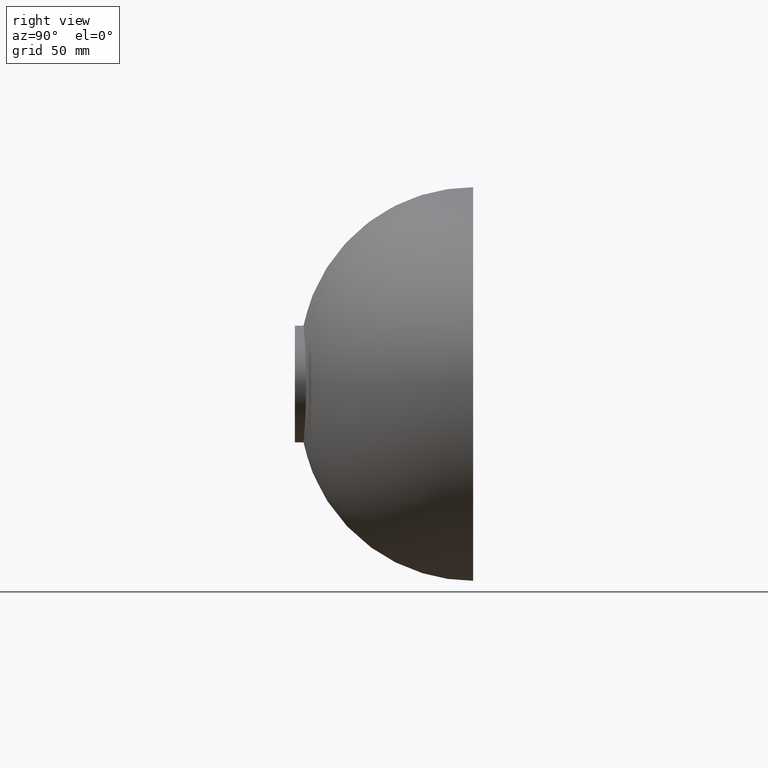
[diagram: clean part render]
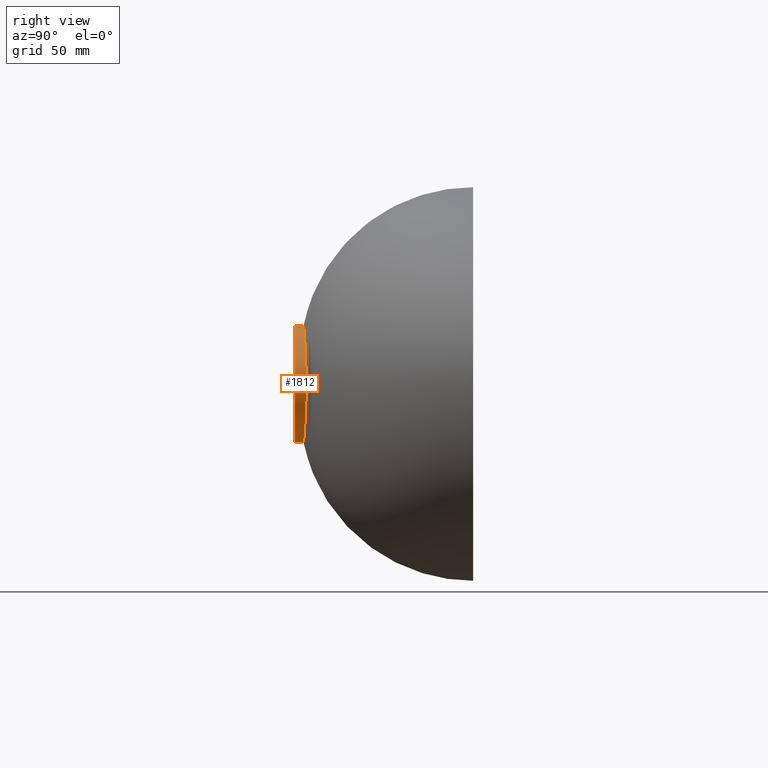
[diagram: same view with one face highlighted and labeled with its STEP entity id]
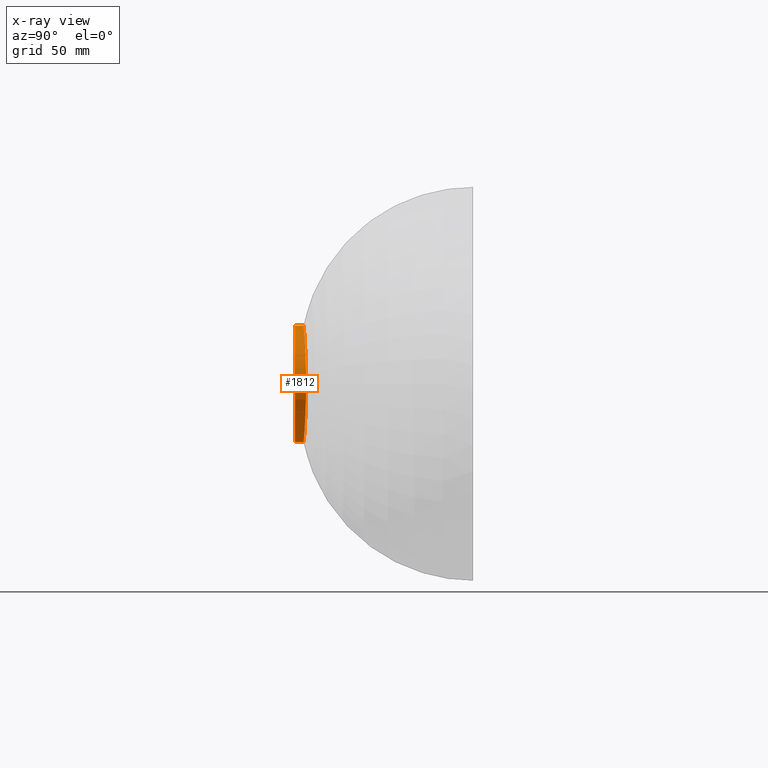
[diagram: x-ray of the same camera — body ghosted, the highlighted face saturated]
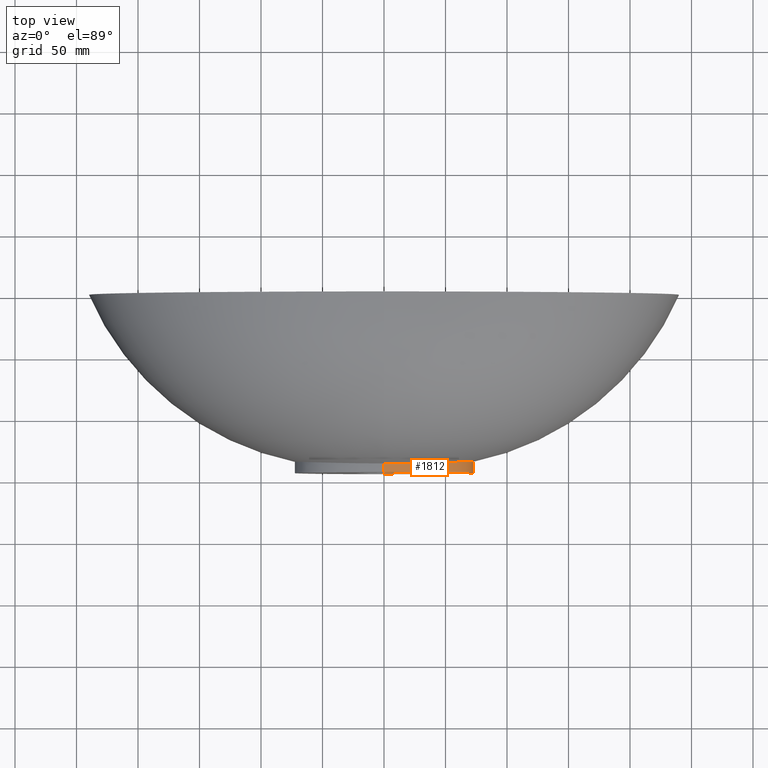
[diagram: same view with one face highlighted and labeled with its STEP entity id]
A machine part, right view. The second image highlights one B-rep face of the part: STEP entity #1812.
The next image is the same camera in x-ray: the body ghosted, the highlighted face saturated — about 0% of this face is hidden behind the body in this view.
A second angle (top view) of the same face is appended — the face is thin or edge-on in the first view.
In plain terms, the highlighted face is a freeform B-spline surface patch.
Its self-contained STEP definition (entity closure, byte-faithful):
#9 = CARTESIAN_POINT ( 'NONE',  ( 63.19082611714007000, -144.2782530991105400, -24.01129502787747700 ) ) ;
#48 = CARTESIAN_POINT ( 'NONE',  ( -4.878909776184770000E-014, -141.4591127333577600, 47.50000000000008500 ) ) ;
#61 = CARTESIAN_POINT ( 'NONE',  ( -18.88924989487716400, -145.0000000000000000, -46.33076592794667200 ) ) ;
#64 = CARTESIAN_POINT ( 'NONE',  ( -8.523105261655329600, -139.6724385538528300, 47.28260225261897200 ) ) ;
#77 = CARTESIAN_POINT ( 'NONE',  ( 70.70070405204289400, -140.4648090031484700, -12.51746803481614000 ) ) ;
#103 = CARTESIAN_POINT ( 'NONE',  ( -36.37578952784633700, -144.3659857811872200, -41.48382591271735700 ) ) ;
#118 = CARTESIAN_POINT ( 'NONE',  ( 18.97133204817271600, -138.4011445108400000, -46.34916941029596400 ) ) ;
#131 = CARTESIAN_POINT ( 'NONE',  ( 73.39576104258816300, -138.0656144816050000, 2.931336282680107300E-014 ) ) ;
#133 = CARTESIAN_POINT ( 'NONE',  ( 70.70847791483379300, -138.1972135047203900, 12.53141140093446500 ) ) ;
#147 = CARTESIAN_POINT ( 'NONE',  ( -8.496432187489837400, -144.4080487282058100, 47.28019046248007100 ) ) ;
#150 = CARTESIAN_POINT ( 'NONE',  ( -36.47748579604199600, -138.0258435930650500, 41.54303419612596600 ) ) ;
#155 = CARTESIAN_POINT ( 'NONE',  ( -20.14605148621233300, -137.7739539450780900, 46.03071662550119900 ) ) ;
#200 = CARTESIAN_POINT ( 'NONE',  ( -51.49386407069845000, -144.3221194401485500, -33.89021165731571700 ) ) ;
#216 = CARTESIAN_POINT ( 'NONE',  ( 8.496432187490270800, -144.4080487282058100, 47.28019046248040500 ) ) ;
#226 = CARTESIAN_POINT ( 'NONE',  ( 36.42663766190808200, -141.1959146871250800, 41.51343005442369400 ) ) ;
#228 = VERTEX_POINT ( 'NONE', #1721 ) ;
#254 = CARTESIAN_POINT ( 'NONE',  ( -63.20928323761302900, -142.8347592973311500, 24.02381938732844400 ) ) ;
#272 = VERTEX_POINT ( 'NONE', #1877 ) ;
#277 = CARTESIAN_POINT ( 'NONE',  ( -18.97879406221078500, -137.8012485572785700, -46.35084245414679300 ) ) ;
#287 = CARTESIAN_POINT ( 'NONE',  ( -36.42663766189820500, -141.1959146871263300, 41.51343005442281300 ) ) ;
#296 = CARTESIAN_POINT ( 'NONE',  ( -0.9467010989243734900, -141.4591127333577800, 47.50000000000006400 ) ) ;
#322 = CARTESIAN_POINT ( 'NONE',  ( -51.51810704873506800, -142.9663583204472300, 33.90550194336908200 ) ) ;
#338 = CARTESIAN_POINT ( 'NONE',  ( -2.208969230823431700, -141.4582354065370300, 47.48261206286574100 ) ) ;
#359 = CARTESIAN_POINT ( 'NONE',  ( 2.213322072292234200, -138.5067649119846200, 47.48273754115446400 ) ) ;
#361 = CARTESIAN_POINT ( 'NONE',  ( -0.9478204010163781000, -139.6886691000369800, 47.49999999999997200 ) ) ;
#387 = CARTESIAN_POINT ( 'NONE',  ( -1.956109484595270200E-010, -137.9182254667158000, -47.49999999999994300 ) ) ;
#424 = CARTESIAN_POINT ( 'NONE',  ( -20.10019635737923200, -141.3869769725389700, 46.01897924860392000 ) ) ;
#435 = CARTESIAN_POINT ( 'NONE',  ( -2.211580935704771100, -139.6873531098058500, 47.48268734983888400 ) ) ;
#445 = CARTESIAN_POINT ( 'NONE',  ( -8.513102858843277300, -141.4482923692350200, 47.28169783131699700 ) ) ;
#485 = CARTESIAN_POINT ( 'NONE',  ( 63.20928323763670400, -142.8347592973302900, 24.02381938732999700 ) ) ;
#487 = CARTESIAN_POINT ( 'NONE',  ( -63.26465459895197800, -138.5042778919933800, 24.06139246569001200 ) ) ;
#512 = CARTESIAN_POINT ( 'NONE',  ( 0.9467010989242589100, -141.4591127333577300, 47.50000000000009900 ) ) ;
#516 = CARTESIAN_POINT ( 'NONE',  ( -1.956109484595270200E-010, -137.9182254667158000, -47.49999999999994300 ) ) ;
#517 = CARTESIAN_POINT ( 'NONE',  ( -1.978285989242497000E-010, -138.5083733444895100, -47.50000000000001400 ) ) ;
#518 = CARTESIAN_POINT ( 'NONE',  ( 73.40742183674269900, -144.9999999999999400, 7.411292116445277000E-014 ) ) ;
#520 = CARTESIAN_POINT ( 'NONE',  ( -2.022717061093367100E-010, -139.6886691000369800, -47.49999999999990800 ) ) ;
#526 = CARTESIAN_POINT ( 'NONE',  ( -2.089311627165395800E-010, -141.4591127333577600, -47.50000000000012100 ) ) ;
#528 = CARTESIAN_POINT ( 'NONE',  ( -2.156018950263358500E-010, -143.2295563666790500, -47.49999999999990800 ) ) ;
#531 = CARTESIAN_POINT ( 'NONE',  ( -2.089189108949559300E-010, -145.0000000000000300, -47.49999999999998600 ) ) ;
#536 = CARTESIAN_POINT ( 'NONE',  ( -4.857225732735059900E-014, -144.9999999999999700, 47.50000000000000000 ) ) ;
#539 = CARTESIAN_POINT ( 'NONE',  ( 0.9444624947402577900, -144.9999999999999700, 47.50000000000002100 ) ) ;
#540 = CARTESIAN_POINT ( 'NONE',  ( 2.203745821060689300, -144.9999999999999700, 47.48246148891922000 ) ) ;
#544 = CARTESIAN_POINT ( 'NONE',  ( 8.493098053219599200, -144.9999999999999700, 47.27988898871306800 ) ) ;
#549 = CARTESIAN_POINT ( 'NONE',  ( 20.05434122854967800, -145.0000000000000000, 46.00724187170737200 ) ) ;
#552 = CARTESIAN_POINT ( 'NONE',  ( 36.36561990093777300, -145.0000000000000000, 41.47790508438042400 ) ) ;
#553 = CARTESIAN_POINT ( 'NONE',  ( 51.48174258159021800, -145.0000000000000000, 33.88256651429359300 ) ) ;
#555 = CARTESIAN_POINT ( 'NONE',  ( 63.18159755696972700, -145.0000000000000000, 24.00503284814968900 ) ) ;
#557 = CARTESIAN_POINT ( 'NONE',  ( -5.395406098306375800E-011, -139.7325354410756700, -48.07708833870187700 ) ) ;
#562 = CARTESIAN_POINT ( 'NONE',  ( 70.68515632652859900, -144.9999999999999700, 12.48958130257897800 ) ) ;
#563 = CARTESIAN_POINT ( 'NONE',  ( 73.40742183674269900, -144.9999999999999400, 7.411292116445277000E-014 ) ) ;
#565 = CARTESIAN_POINT ( 'NONE',  ( 70.68515632650097300, -144.9999999999999400, -12.48958130257923400 ) ) ;
#571 = CARTESIAN_POINT ( 'NONE',  ( 63.18159755691606000, -144.9999999999999700, -24.00503284815077300 ) ) ;
#573 = CARTESIAN_POINT ( 'NONE',  ( 51.48174258151357200, -144.9999999999999700, -33.88256651429549700 ) ) ;
#575 = CARTESIAN_POINT ( 'NONE',  ( 18.93402197842838000, -141.4006242786398700, -46.34080419104449800 ) ) ;
#576 = CARTESIAN_POINT ( 'NONE',  ( 36.36561990084273800, -145.0000000000000000, -41.47790508438275500 ) ) ;
#582 = CARTESIAN_POINT ( 'NONE',  ( 18.88924989460169400, -145.0000000000000000, -46.33076592797957000 ) ) ;
#583 = CARTESIAN_POINT ( 'NONE',  ( 6.296416631388699300, -145.0000000000000300, -47.50000000001227800 ) ) ;
#585 = CARTESIAN_POINT ( 'NONE',  ( -2.200397980409952000E-010, -144.4098521222263700, -47.49999999999998600 ) ) ;
#587 = CARTESIAN_POINT ( 'NONE',  ( -73.39316975499622200, -136.5246399219622300, -5.598812491603895900E-014 ) ) ;
#588 = ORIENTED_EDGE ( 'NONE', *, *, #1447, .F. ) ;
#602 = CARTESIAN_POINT ( 'NONE',  ( -4.857225732735059900E-014, -144.9999999999999700, 47.50000000000000000 ) ) ;
#604 = CARTESIAN_POINT ( 'NONE',  ( 36.36561990084273800, -145.0000000000000000, -41.47790508438275500 ) ) ;
#618 = CARTESIAN_POINT ( 'NONE',  ( -20.06198375001827500, -144.3978294954231400, 46.00919810118939100 ) ) ;
#633 = CARTESIAN_POINT ( 'NONE',  ( 2.214192640586012000, -137.9164708130741100, 47.48276263681223200 ) ) ;
#669 = CARTESIAN_POINT ( 'NONE',  ( -51.61507896117874600, -137.5433138416397900, 33.96666308757590300 ) ) ;
#671 = ORIENTED_EDGE ( 'NONE', *, *, #2907, .F. ) ;
#681 = CARTESIAN_POINT ( 'NONE',  ( -4.931325884067149800E-011, -138.5619877613145500, -48.07541529485182300 ) ) ;
#702 = CARTESIAN_POINT ( 'NONE',  ( -63.28311171939834900, -137.0607840902142400, 24.07391682514388600 ) ) ;
#712 = CARTESIAN_POINT ( 'NONE',  ( 63.18159755696972700, -145.0000000000000000, 24.00503284814968900 ) ) ;
#742 = CARTESIAN_POINT ( 'NONE',  ( 36.47748579604999700, -138.0258435930627700, 41.54303419612628500 ) ) ;
#750 = B_SPLINE_CURVE_WITH_KNOTS ( 'NONE', 3,
 ( #1682, #1194, #1185, #1183, #1175, #1173, #1168, #1166, #1164, #1160, #1159, #1157, #1154, #1152, #1150, #1146, #1143 ),
 .UNSPECIFIED., .F., .F.,
 ( 4, 1, 1, 1, 1, 1, 1, 1, 1, 1, 1, 1, 1, 1, 4 ),
 ( 0.5000000000000000000, 0.5416666666657648000, 0.5833333333325132500, 0.6249999999992620300, 0.6666666666660107100, 0.7083333333327592700, 0.7499999999995079500, 0.7916666666662566200, 0.8333333333330053000, 0.8749999999997539700, 0.9166666666665026500, 0.9583333333332513200, 0.9916666666666502600, 0.9937499999999877000, 1.000000000000000000 ),
 .UNSPECIFIED. ) ;
#752 = CARTESIAN_POINT ( 'NONE',  ( 51.59083598302800800, -138.8990749613439800, -33.95137280152551500 ) ) ;
#755 = CARTESIAN_POINT ( 'NONE',  ( 36.37578952776615900, -144.3659857811875600, 41.48382591272096000 ) ) ;
#861 = CARTESIAN_POINT ( 'NONE',  ( 36.47748579598737000, -138.0258435930686600, -41.54303419612674000 ) ) ;
#865 = CARTESIAN_POINT ( 'NONE',  ( 0.9448355954375935500, -144.4098521222262800, 47.50000000000002100 ) ) ;
#873 = EDGE_CURVE ( 'NONE', #2370, #228, #750, .T. ) ;
#877 = CARTESIAN_POINT ( 'NONE',  ( 36.37578952767407300, -144.3659857811881300, -41.48382591272311300 ) ) ;
#901 = CARTESIAN_POINT ( 'NONE',  ( -7.250859593525298800E-011, -144.4147261601195900, -48.08378051410260700 ) ) ;
#907 = CARTESIAN_POINT ( 'NONE',  ( 0.9478204010162527600, -139.6886691000369200, 47.49999999999997200 ) ) ;
#908 = CARTESIAN_POINT ( 'NONE',  ( 51.55447151585653400, -140.9327166408960200, -33.92843737244896100 ) ) ;
#911 = CARTESIAN_POINT ( 'NONE',  ( -0.9455817968323690900, -143.2295563666789900, 47.49999999999989300 ) ) ;
#914 = CARTESIAN_POINT ( 'NONE',  ( -18.93402197854399200, -141.4006242786391600, -46.34080419104687800 ) ) ;
#916 = CARTESIAN_POINT ( 'NONE',  ( -20.07726879296262000, -143.1934884862696200, 46.01311056015507700 ) ) ;
#921 = CARTESIAN_POINT ( 'NONE',  ( -63.18159755699727500, -145.0000000000000300, -24.00503284814667300 ) ) ;
#927 = CARTESIAN_POINT ( 'NONE',  ( -2.206357525942089100, -143.2291177032686300, 47.48253677589230600 ) ) ;
#932 = CARTESIAN_POINT ( 'NONE',  ( 73.40612619294776700, -144.2295127201783200, 6.923156598671240900E-014 ) ) ;
#943 = CARTESIAN_POINT ( 'NONE',  ( 70.71625177758474500, -135.9296180062968100, -12.54535476705298600 ) ) ;
#949 = CARTESIAN_POINT ( 'NONE',  ( 70.68774761409132200, -144.2441348338580300, -12.49422909128538200 ) ) ;
#976 = CARTESIAN_POINT ( 'NONE',  ( 18.95640802027497100, -139.6009364179600700, -46.34582332259524400 ) ) ;
#978 = B_SPLINE_CURVE_WITH_KNOTS ( 'NONE', 3,
 ( #1021, #583, #582, #576, #573, #571, #565, #563, #562, #555, #553, #552, #549, #544, #540, #539, #536 ),
 .UNSPECIFIED., .F., .F.,
 ( 4, 1, 1, 1, 1, 1, 1, 1, 1, 1, 1, 1, 1, 1, 4 ),
 ( 0.5000000000000294200, 0.5416666666657916600, 0.5833333333325377800, 0.6249999999992841300, 0.6666666666660303600, 0.7083333333327763700, 0.7499999999995226000, 0.7916666666662688400, 0.8333333333330151800, 0.8749999999997613000, 0.9166666666665075300, 0.9583333333332537700, 0.9916666666666508200, 0.9937499999999881400, 1.000000000000000000 ),
 .UNSPECIFIED. ) ;
#1011 = CARTESIAN_POINT ( 'NONE',  ( -51.62720045028229500, -136.8654332817823700, -33.97430823060150800 ) ) ;
#1021 = CARTESIAN_POINT ( 'NONE',  ( -2.089189108949559300E-010, -145.0000000000000300, -47.49999999999998600 ) ) ;
#1036 = CARTESIAN_POINT ( 'NONE',  ( -51.55447151596390400, -140.9327166408912100, -33.92843737244572100 ) ) ;
#1037 = CARTESIAN_POINT ( 'NONE',  ( 63.23696891830378800, -140.6695185946607600, 24.04260592651042900 ) ) ;
#1061 = ORIENTED_EDGE ( 'NONE', *, *, #873, .T. ) ;
#1095 = CARTESIAN_POINT ( 'NONE',  ( 18.88924989473515500, -145.0000000000000000, -46.33076592794250800 ) ) ;
#1107 = CARTESIAN_POINT ( 'NONE',  ( 2.208969230823354800, -141.4582354065369400, 47.48261206286579700 ) ) ;
#1143 = CARTESIAN_POINT ( 'NONE',  ( -5.334274688628681800E-014, -137.9182254667157400, 47.50000000000003600 ) ) ;
#1145 = CARTESIAN_POINT ( 'NONE',  ( -70.68515632650712600, -145.0000000000000300, 12.48958130257755200 ) ) ;
#1146 = CARTESIAN_POINT ( 'NONE',  ( 0.9489397031082541500, -137.9182254667157100, 47.50000000000004300 ) ) ;
#1150 = CARTESIAN_POINT ( 'NONE',  ( 2.214192640586012000, -137.9164708130741100, 47.48276263681223200 ) ) ;
#1152 = CARTESIAN_POINT ( 'NONE',  ( 8.533107664467616300, -137.8965847384696700, 47.28350667392120200 ) ) ;
#1154 = CARTESIAN_POINT ( 'NONE',  ( 20.14605148621453200, -137.7739539450767000, 46.03071662550132000 ) ) ;
#1157 = CARTESIAN_POINT ( 'NONE',  ( 36.48765542287834800, -137.3918293742502500, 41.54895502446683500 ) ) ;
#1159 = CARTESIAN_POINT ( 'NONE',  ( 51.62720045024758500, -136.8654332817856400, 33.97430823060204100 ) ) ;
#1160 = CARTESIAN_POINT ( 'NONE',  ( 63.29234027963777700, -136.3390371893214000, 24.08017900487109500 ) ) ;
#1164 = CARTESIAN_POINT ( 'NONE',  ( 70.71625177760209600, -135.9296180062940500, 12.54535476705298300 ) ) ;
#1166 = CARTESIAN_POINT ( 'NONE',  ( 73.39187411120319400, -135.7541526421403000, 1.640402076955688300E-014 ) ) ;
#1168 = CARTESIAN_POINT ( 'NONE',  ( 70.71625177758474500, -135.9296180062968100, -12.54535476705298600 ) ) ;
#1173 = CARTESIAN_POINT ( 'NONE',  ( 63.29234027960403400, -136.3390371893264300, -24.08017900487119800 ) ) ;
#1175 = CARTESIAN_POINT ( 'NONE',  ( 51.62720045019942500, -136.8654332817920600, -33.97430823060221900 ) ) ;
#1176 = CARTESIAN_POINT ( 'NONE',  ( 20.10019635738212100, -141.3869769725382100, 46.01897924860441700 ) ) ;
#1183 = CARTESIAN_POINT ( 'NONE',  ( 36.48765542281864800, -137.3918293742567300, -41.54895502446704800 ) ) ;
#1185 = CARTESIAN_POINT ( 'NONE',  ( 18.97879406198374100, -137.8012485572832000, -46.35084245418401100 ) ) ;
#1194 = CARTESIAN_POINT ( 'NONE',  ( 6.326264687193125600, -137.9182254667174400, -47.50000000001342900 ) ) ;
#1203 = CARTESIAN_POINT ( 'NONE',  ( 51.49386407057073700, -144.3221194401493200, -33.89021165732106100 ) ) ;
#1224 = CARTESIAN_POINT ( 'NONE',  ( -2.204616389354533200, -144.4097059010895000, 47.48248658457687600 ) ) ;
#1261 = CARTESIAN_POINT ( 'NONE',  ( -0.9485666024110465100, -138.5083733444895100, 47.50000000000000700 ) ) ;
#1269 = CARTESIAN_POINT ( 'NONE',  ( -4.618701254788248900E-014, -144.4098521222262800, 47.50000000000000000 ) ) ;
#1278 = CARTESIAN_POINT ( 'NONE',  ( 63.26465459897082200, -138.5042778919909400, 24.06139246569071600 ) ) ;
#1309 = CARTESIAN_POINT ( 'NONE',  ( -0.9489397031083777200, -137.9182254667157700, 47.50000000000002800 ) ) ;
#1311 = CARTESIAN_POINT ( 'NONE',  ( 2.203745821060689300, -144.9999999999999700, 47.48246148891922000 ) ) ;
#1328 = CARTESIAN_POINT ( 'NONE',  ( -4.672911363412524100E-014, -143.2295563666789900, 47.49999999999991500 ) ) ;
#1345 = CARTESIAN_POINT ( 'NONE',  ( 20.07726879296587800, -143.1934884862692200, 46.01311056015577300 ) ) ;
#1358 = CARTESIAN_POINT ( 'NONE',  ( 2.211580935704679200, -139.6873531098057100, 47.48268734983891900 ) ) ;
#1360 = CARTESIAN_POINT ( 'NONE',  ( -4.618701254788248900E-014, -144.4098521222262800, 47.50000000000000000 ) ) ;
#1396 = CARTESIAN_POINT ( 'NONE',  ( -70.69293018927739100, -142.7324045015740800, 12.50352466869632700 ) ) ;
#1413 = VERTEX_POINT ( 'NONE', #602 ) ;
#1418 = CARTESIAN_POINT ( 'NONE',  ( -73.39576104258584600, -138.0656144816052500, -6.117051817035592700E-014 ) ) ;
#1423 = CARTESIAN_POINT ( 'NONE',  ( 73.39964797397298900, -140.3770763210702300, 4.655951357398738600E-014 ) ) ;
#1430 = CARTESIAN_POINT ( 'NONE',  ( -4.672911363412524100E-014, -143.2295563666789900, 47.49999999999991500 ) ) ;
#1443 = CARTESIAN_POINT ( 'NONE',  ( -4.878909776184770000E-014, -141.4591127333577600, 47.50000000000008500 ) ) ;
#1446 = CARTESIAN_POINT ( 'NONE',  ( -5.421010862427522200E-014, -139.6886691000369500, 47.49999999999997200 ) ) ;
#1447 = EDGE_CURVE ( 'NONE', #272, #1413, #978, .T. ) ;
#1449 = CARTESIAN_POINT ( 'NONE',  ( -5.502326025363935000E-014, -138.5083733444894600, 47.50000000000001400 ) ) ;
#1452 = CARTESIAN_POINT ( 'NONE',  ( -5.334274688628681800E-014, -137.9182254667157400, 47.50000000000003600 ) ) ;
#1455 = CARTESIAN_POINT ( 'NONE',  ( -73.40742183673961600, -145.0000000000000300, -1.057416503954978900E-013 ) ) ;
#1474 = EDGE_CURVE ( 'NONE', #272, #2370, #1956, .T. ) ;
#1489 = CARTESIAN_POINT ( 'NONE',  ( 63.18159755691606000, -144.9999999999999700, -24.00503284815077300 ) ) ;
#1525 = CARTESIAN_POINT ( 'NONE',  ( -36.45714654245286800, -139.2938720306847800, -41.53119253944378600 ) ) ;
#1563 = CARTESIAN_POINT ( 'NONE',  ( 18.89671190868402200, -144.4001040464400500, -46.33243897179282600 ) ) ;
#1604 = CARTESIAN_POINT ( 'NONE',  ( 63.29234027960403400, -136.3390371893264300, -24.08017900487119800 ) ) ;
#1618 = CARTESIAN_POINT ( 'NONE',  ( -36.39612878141181100, -143.0979573435632200, 41.49566756940073700 ) ) ;
#1656 = CARTESIAN_POINT ( 'NONE',  ( -73.40353490535491700, -142.6885381605351000, -9.146284747910937700E-014 ) ) ;
#1673 = CARTESIAN_POINT ( 'NONE',  ( 20.12312392179832100, -139.5804654588076500, 46.02484793705276200 ) ) ;
#1675 = CARTESIAN_POINT ( 'NONE',  ( -18.89671190882163600, -144.4001040464399400, -46.33243897179669100 ) ) ;
#1682 = CARTESIAN_POINT ( 'NONE',  ( -1.956109484595270200E-010, -137.9182254667158000, -47.49999999999994300 ) ) ;
#1683 = CARTESIAN_POINT ( 'NONE',  ( -18.95640802037737400, -139.6009364179590500, -46.34582332259672200 ) ) ;
#1685 = CARTESIAN_POINT ( 'NONE',  ( -51.49386407062422700, -144.3221194401490900, 33.89021165731746500 ) ) ;
#1689 = CARTESIAN_POINT ( 'NONE',  ( -18.97133204826632300, -138.4011445108387500, -46.34916941029685200 ) ) ;
#1693 = CARTESIAN_POINT ( 'NONE',  ( -36.36561990102051600, -144.9999999999999700, -41.47790508437654500 ) ) ;
#1721 = CARTESIAN_POINT ( 'NONE',  ( -5.334274688628681800E-014, -137.9182254667157400, 47.50000000000003600 ) ) ;
#1723 = CARTESIAN_POINT ( 'NONE',  ( 51.51810704868501000, -142.9663583204479700, -33.90550194337212300 ) ) ;
#1724 = CARTESIAN_POINT ( 'NONE',  ( -51.59083598306780500, -138.8990749613416300, 33.95137280152418000 ) ) ;
#1737 = CARTESIAN_POINT ( 'NONE',  ( 51.48174258159021800, -145.0000000000000000, 33.88256651429359300 ) ) ;
#1762 = CARTESIAN_POINT ( 'NONE',  ( -63.19082611721876900, -144.2782530991100300, -24.01129502787367900 ) ) ;
#1772 = CARTESIAN_POINT ( 'NONE',  ( -63.18159755694367900, -145.0000000000000300, 24.00503284814772100 ) ) ;
#1778 = CARTESIAN_POINT ( 'NONE',  ( -8.529773530196706600, -138.4885360102644300, 47.28320520015376600 ) ) ;
#1779 = CARTESIAN_POINT ( 'NONE',  ( -63.20928323766164400, -142.8347592973298700, -24.02381938732763800 ) ) ;
#1790 = CARTESIAN_POINT ( 'NONE',  ( -51.59083598312300700, -138.8990749613367400, -33.95137280152353300 ) ) ;
#1812 = ADVANCED_FACE ( 'NONE', ( #2199 ), #2866, .T. ) ;
#1814 = CARTESIAN_POINT ( 'NONE',  ( -73.40612619294475400, -144.2295127201784300, -1.009820494233684500E-013 ) ) ;
#1824 = CARTESIAN_POINT ( 'NONE',  ( 0.9444624947402577900, -144.9999999999999700, 47.50000000000002100 ) ) ;
#1832 = CARTESIAN_POINT ( 'NONE',  ( -4.857225732735059900E-014, -144.9999999999999700, 47.50000000000000000 ) ) ;
#1843 = CARTESIAN_POINT ( 'NONE',  ( 36.39612878133669200, -143.0979573435641900, -41.49566756940375700 ) ) ;
#1846 = CARTESIAN_POINT ( 'NONE',  ( -70.71625177758873800, -135.9296180062963800, 12.54535476705275300 ) ) ;
#1854 = CARTESIAN_POINT ( 'NONE',  ( 18.97879406212156900, -137.8012485572799900, -46.35084245414621800 ) ) ;
#1858 = CARTESIAN_POINT ( 'NONE',  ( -36.39612878149792900, -143.0979573435616300, -41.49566756939890400 ) ) ;
#1874 = CARTESIAN_POINT ( 'NONE',  ( 20.14605148621453200, -137.7739539450767000, 46.03071662550132000 ) ) ;
#1877 = CARTESIAN_POINT ( 'NONE',  ( -2.089189108949559300E-010, -145.0000000000000300, -47.49999999999998600 ) ) ;
#1878 = CARTESIAN_POINT ( 'NONE',  ( 73.39316975499825400, -136.5246399219619500, 2.128537594729725000E-014 ) ) ;
#1887 = CARTESIAN_POINT ( 'NONE',  ( -70.68774761412395000, -144.2441348338578300, -12.49422909128363200 ) ) ;
#1894 = CARTESIAN_POINT ( 'NONE',  ( -2.214192640586106500, -137.9164708130742600, 47.48276263681221800 ) ) ;
#1900 = CARTESIAN_POINT ( 'NONE',  ( -70.70847791481824600, -138.1972135047221300, 12.53141140093394100 ) ) ;
#1903 = CARTESIAN_POINT ( 'NONE',  ( -70.71366049001675000, -136.6854831724358500, -12.54070697834651000 ) ) ;
#1905 = CARTESIAN_POINT ( 'NONE',  ( -70.69293018930240200, -142.7324045015733700, -12.50352466869618200 ) ) ;
#1910 = CARTESIAN_POINT ( 'NONE',  ( -5.502326025363935000E-014, -138.5083733444894600, 47.50000000000001400 ) ) ;
#1914 = CARTESIAN_POINT ( 'NONE',  ( -63.29234027965517800, -136.3390371893195300, -24.08017900487070100 ) ) ;
#1924 = CARTESIAN_POINT ( 'NONE',  ( -51.48174258164537800, -145.0000000000000000, -33.88256651428973500 ) ) ;
#1936 = CARTESIAN_POINT ( 'NONE',  ( -70.71625177760606100, -135.9296180062935900, -12.54535476705278400 ) ) ;
#1937 = CARTESIAN_POINT ( 'NONE',  ( -8.533107664467388900, -137.8965847384702400, 47.28350667392114600 ) ) ;
#1940 = CARTESIAN_POINT ( 'NONE',  ( -4.857225732735059900E-014, -144.9999999999999700, 47.50000000000000000 ) ) ;
#1944 = CARTESIAN_POINT ( 'NONE',  ( -5.502326025363935000E-014, -138.5083733444894600, 47.50000000000001400 ) ) ;
#1946 = CARTESIAN_POINT ( 'NONE',  ( -5.334274688628681800E-014, -137.9182254667157400, 47.50000000000003600 ) ) ;
#1948 = CARTESIAN_POINT ( 'NONE',  ( 51.61507896119285700, -137.5433138416368600, 33.96666308757633600 ) ) ;
#1956 = B_SPLINE_CURVE_WITH_KNOTS ( 'NONE', 3,
 ( #531, #585, #528, #526, #520, #517, #516 ),
 .UNSPECIFIED., .F., .F.,
 ( 4, 1, 1, 1, 4 ),
 ( 0.1419559664285766600, 0.1499635796053198100, 0.1579711927820630100, 0.1659788059588061500, 0.1739864191355493000 ),
 .UNSPECIFIED. ) ;
#1966 = CARTESIAN_POINT ( 'NONE',  ( -51.61507896122920200, -137.5433138416338500, -33.96666308757557600 ) ) ;
#1993 = CARTESIAN_POINT ( 'NONE',  ( 8.529773530196951700, -138.4885360102638900, 47.28320520015383700 ) ) ;
#1997 = CARTESIAN_POINT ( 'NONE',  ( 20.13840896474247800, -138.3761244496537000, 46.02876039601847700 ) ) ;
#2001 = CARTESIAN_POINT ( 'NONE',  ( 70.69293018927189100, -142.7324045015740800, -12.50352466869764700 ) ) ;
#2003 = CARTESIAN_POINT ( 'NONE',  ( 70.69293018929694500, -142.7324045015734600, 12.50352466869746100 ) ) ;
#2005 = CARTESIAN_POINT ( 'NONE',  ( 51.51810704875453700, -142.9663583204463700, 33.90550194337064500 ) ) ;
#2016 = CARTESIAN_POINT ( 'NONE',  ( 51.59083598308328100, -138.8990749613392100, 33.95137280152489000 ) ) ;
#2026 = CARTESIAN_POINT ( 'NONE',  ( 70.68515632652859900, -144.9999999999999700, 12.48958130257897800 ) ) ;
#2028 = CARTESIAN_POINT ( 'NONE',  ( -51.62720045023420600, -136.8654332817888500, 33.97430823060175700 ) ) ;
#2041 = CARTESIAN_POINT ( 'NONE',  ( 20.05434122854967800, -145.0000000000000000, 46.00724187170737200 ) ) ;
#2043 = CARTESIAN_POINT ( 'NONE',  ( 8.513102858843620200, -141.4482923692347400, 47.28169783131720300 ) ) ;
#2063 = CARTESIAN_POINT ( 'NONE',  ( 51.48174258151357200, -144.9999999999999700, -33.88256651429549700 ) ) ;
#2074 = CARTESIAN_POINT ( 'NONE',  ( -36.37578952775433500, -144.3659857811877300, 41.48382591271952400 ) ) ;
#2111 = CARTESIAN_POINT ( 'NONE',  ( -63.26465459899062400, -138.5042778919895500, -24.06139246568966800 ) ) ;
#2135 = CARTESIAN_POINT ( 'NONE',  ( -70.70070405207049200, -140.4648090031469400, -12.51746803481509200 ) ) ;
#2139 = CARTESIAN_POINT ( 'NONE',  ( -36.45714654238443600, -139.2938720306896700, 41.53119253944463200 ) ) ;
#2159 = CARTESIAN_POINT ( 'NONE',  ( -36.42663766197547700, -141.1959146871231200, -41.51343005442152600 ) ) ;
#2170 = CARTESIAN_POINT ( 'NONE',  ( 36.45714654239322500, -139.2938720306877700, 41.53119253944517900 ) ) ;
#2195 = CARTESIAN_POINT ( 'NONE',  ( 63.19082611719206700, -144.2782530991101500, 24.01129502787647100 ) ) ;
#2199 = FACE_OUTER_BOUND ( 'NONE', #2943, .T. ) ;
#2204 = CARTESIAN_POINT ( 'NONE',  ( 70.71625177760209600, -135.9296180062940500, 12.54535476705298300 ) ) ;
#2211 = CARTESIAN_POINT ( 'NONE',  ( 70.71366049001274200, -136.6854831724362500, 12.54070697834681900 ) ) ;
#2213 = CARTESIAN_POINT ( 'NONE',  ( -2.203745821060757200, -144.9999999999999700, 47.48246148891911400 ) ) ;
#2228 = CARTESIAN_POINT ( 'NONE',  ( 18.91163593658173200, -143.2003121393200900, -46.33578505949336100 ) ) ;
#2351 = CARTESIAN_POINT ( 'NONE',  ( 0.9485666024109193900, -138.5083733444894300, 47.50000000000002100 ) ) ;
#2367 = CARTESIAN_POINT ( 'NONE',  ( 51.61507896114233800, -137.5433138416427100, -33.96666308757669800 ) ) ;
#2370 = VERTEX_POINT ( 'NONE', #387 ) ;
#2408 = CARTESIAN_POINT ( 'NONE',  ( 36.39612878142288100, -143.0979573435626000, 41.49566756940195200 ) ) ;
#2418 = CARTESIAN_POINT ( 'NONE',  ( 8.523105261655612000, -139.6724385538523700, 47.28260225261910700 ) ) ;
#2444 = CARTESIAN_POINT ( 'NONE',  ( 36.42663766183072500, -141.1959146871282900, -41.51343005442502900 ) ) ;
#2447 = CARTESIAN_POINT ( 'NONE',  ( -6.787473268676460800E-011, -143.2441784803586400, -48.08210747025236000 ) ) ;
#2465 = CARTESIAN_POINT ( 'NONE',  ( -73.39187411120138900, -135.7541526421405800, -4.689171525396740400E-014 ) ) ;
#2469 = CARTESIAN_POINT ( 'NONE',  ( 63.29234027963777700, -136.3390371893214000, 24.08017900487109500 ) ) ;
#2477 = CARTESIAN_POINT ( 'NONE',  ( -70.70070405204803900, -140.4648090031483000, 12.51746803481517900 ) ) ;
#2480 = CARTESIAN_POINT ( 'NONE',  ( -73.39964797397063000, -140.3770763210704600, -7.371459761076743500E-014 ) ) ;
#2481 = CARTESIAN_POINT ( 'NONE',  ( 51.62720045019942500, -136.8654332817920600, -33.97430823060221900 ) ) ;
#2491 = CARTESIAN_POINT ( 'NONE',  ( -36.47748579610453100, -138.0258435930591400, -41.54303419612549700 ) ) ;
#2502 = CARTESIAN_POINT ( 'NONE',  ( -18.91163593671055300, -143.2003121393197500, -46.33578505949663700 ) ) ;
#2506 = CARTESIAN_POINT ( 'NONE',  ( 51.49386407064500300, -144.3221194401488400, 33.89021165731929800 ) ) ;
#2508 = CARTESIAN_POINT ( 'NONE',  ( 0.9455817968322589600, -143.2295563666789900, 47.49999999999992900 ) ) ;
#2510 = CARTESIAN_POINT ( 'NONE',  ( -63.23696891828269200, -140.6695185946623500, 24.04260592650931000 ) ) ;
#2514 = CARTESIAN_POINT ( 'NONE',  ( 36.48765542281864800, -137.3918293742567300, -41.54895502446704800 ) ) ;
#2520 = CARTESIAN_POINT ( 'NONE',  ( 73.40353490535780200, -142.6885381605349600, 6.207094084519688500E-014 ) ) ;
#2530 = CARTESIAN_POINT ( 'NONE',  ( -4.618701254788248900E-014, -144.4098521222262800, 47.50000000000000000 ) ) ;
#2550 = CARTESIAN_POINT ( 'NONE',  ( 63.23696891826008200, -140.6695185946632900, -24.04260592651105100 ) ) ;
#2587 = CARTESIAN_POINT ( 'NONE',  ( 63.28311171938013000, -137.0607840902159200, -24.07391682514451500 ) ) ;
#2614 = CARTESIAN_POINT ( 'NONE',  ( 70.70070405206537600, -140.4648090031471400, 12.51746803481600500 ) ) ;
#2622 = CARTESIAN_POINT ( 'NONE',  ( 2.206357525942020300, -143.2291177032685700, 47.48253677589238500 ) ) ;
#2626 = CARTESIAN_POINT ( 'NONE',  ( -4.857225732735059900E-014, -144.9999999999999700, 47.50000000000000000 ) ) ;
#2636 = CARTESIAN_POINT ( 'NONE',  ( 8.503100456031599900, -143.2241461846175000, 47.28079341001502200 ) ) ;
#2646 = CARTESIAN_POINT ( 'NONE',  ( 73.39187411120319400, -135.7541526421403000, 1.640402076955688300E-014 ) ) ;
#2655 = CARTESIAN_POINT ( 'NONE',  ( -4.672911363412524100E-014, -143.2295563666789900, 47.49999999999991500 ) ) ;
#2682 = CARTESIAN_POINT ( 'NONE',  ( -7.482466019775914400E-011, -145.0000000000000300, -48.08461703602769400 ) ) ;
#2714 = CARTESIAN_POINT ( 'NONE',  ( -70.68774761409723300, -144.2441348338580600, 12.49422909128381900 ) ) ;
#2720 = ORIENTED_EDGE ( 'NONE', *, *, #1474, .T. ) ;
#2735 = CARTESIAN_POINT ( 'NONE',  ( -70.71366048999857400, -136.6854831724383500, 12.54070697834648700 ) ) ;
#2744 = CARTESIAN_POINT ( 'NONE',  ( 70.68774761411805200, -144.2441348338578300, 12.49422909128514500 ) ) ;
#2761 = CARTESIAN_POINT ( 'NONE',  ( -2.213322072292330100, -138.5067649119847600, 47.48273754115444900 ) ) ;
#2774 = CARTESIAN_POINT ( 'NONE',  ( -8.493098053219151600, -144.9999999999999400, 47.27988898871269900 ) ) ;
#2782 = CARTESIAN_POINT ( 'NONE',  ( -36.36561990092556600, -144.9999999999999700, 41.47790508437888900 ) ) ;
#2787 = CARTESIAN_POINT ( 'NONE',  ( -70.68515632653468100, -145.0000000000000300, -12.48958130257734600 ) ) ;
#2806 = CARTESIAN_POINT ( 'NONE',  ( -20.05434122854609000, -144.9999999999999700, 46.00724187170650500 ) ) ;
#2808 = CARTESIAN_POINT ( 'NONE',  ( -5.421010862427522200E-014, -139.6886691000369500, 47.49999999999997200 ) ) ;
#2812 = CARTESIAN_POINT ( 'NONE',  ( -36.48765542287075900, -137.3918293742527500, 41.54895502446660800 ) ) ;
#2817 = CARTESIAN_POINT ( 'NONE',  ( 51.62720045024758500, -136.8654332817856400, 33.97430823060204100 ) ) ;
#2842 = CARTESIAN_POINT ( 'NONE',  ( 36.36561990093777300, -145.0000000000000000, 41.47790508438042400 ) ) ;
#2866 = B_SPLINE_SURFACE_WITH_KNOTS ( 'NONE', 3, 3, ( 
 ( #1832, #2961, #2213, #2774, #2806, #2782, #3044, #1772, #1145, #1455, #2787, #921, #1924, #1693, #61, #2682, #1095, #604, #2063, #1489, #2868, #518, #2026, #712, #1737, #2842, #2041, #3085, #1311, #1824, #1940 ),
 ( #2530, #3074, #1224, #147, #618, #2074, #1685, #3006, #2714, #1814, #1887, #1762, #200, #103, #1675, #901, #1563, #877, #1203, #9, #949, #932, #2744, #2195, #2506, #755, #3235, #216, #3233, #865, #1269 ),
 ( #1328, #911, #927, #3197, #916, #1618, #322, #254, #1396, #1656, #1905, #1779, #3096, #1858, #2502, #2447, #2228, #1843, #1723, #3056, #2001, #2520, #2003, #485, #2005, #2408, #1345, #2636, #2622, #2508, #2655 ),
 ( #3068, #296, #338, #445, #424, #287, #3115, #2510, #2477, #2480, #2135, #3118, #1036, #2159, #914, #3127, #575, #2444, #908, #2550, #77, #1423, #2614, #1037, #3132, #226, #1176, #2043, #1107, #512, #48 ),
 ( #2808, #361, #435, #64, #3170, #2139, #1724, #487, #1900, #1418, #3148, #2111, #1790, #1525, #1683, #557, #976, #3012, #752, #2979, #2971, #131, #133, #1278, #2016, #2170, #1673, #2418, #1358, #907, #3103 ),
 ( #1910, #1261, #2761, #1778, #3145, #150, #669, #702, #2735, #587, #1903, #3166, #1966, #2491, #1689, #681, #118, #861, #2367, #2587, #3113, #1878, #2211, #3098, #1948, #742, #1997, #1993, #359, #2351, #1944 ),
 ( #1946, #1309, #1894, #1937, #155, #2812, #2028, #3227, #1846, #2465, #1936, #1914, #1011, #3055, #277, #3107, #1854, #2514, #2481, #1604, #943, #2646, #2204, #2469, #2817, #3129, #1874, #3021, #633, #3052, #3081 ) ),
 .UNSPECIFIED., .F., .T., .F.,
 ( 4, 1, 1, 1, 4 ),
 ( 4, 1, 1, 1, 1, 1, 1, 1, 1, 1, 1, 1, 1, 1, 1, 1, 1, 1, 1, 1, 1, 1, 1, 1, 1, 1, 1, 1, 4 ),
 ( 0.1419559664285766600, 0.1499635796053198100, 0.1579711927820630100, 0.1659788059588061500, 0.1739864191355493000 ),
 ( 0.0000000000000000000, 0.006250000000000088800, 0.008333333333333303700, 0.04166666666666663000, 0.08333333333333337000, 0.1249999999999998900, 0.1666666666666666300, 0.2083333333333333700, 0.2499999999999998300, 0.2916666666666666300, 0.3333333333333333700, 0.3750000000000001100, 0.4166666666666666300, 0.4583333333333333700, 0.5000000000009839900, 0.5416666666666667400, 0.5833333333333332600, 0.6250000000000000000, 0.6666666666666667400, 0.7083333333333332600, 0.7499999999999998900, 0.7916666666666666300, 0.8333333333333333700, 0.8750000000000000000, 0.9166666666666666300, 0.9583333333333333700, 0.9916666666666667000, 0.9937500000000000200, 1.000000000000000000 ),
 .UNSPECIFIED. ) ;
#2868 = CARTESIAN_POINT ( 'NONE',  ( 70.68515632650097300, -144.9999999999999400, -12.48958130257923400 ) ) ;
#2907 = EDGE_CURVE ( 'NONE', #1413, #228, #3120, .T. ) ;
#2943 = EDGE_LOOP ( 'NONE', ( #588, #2720, #1061, #671 ) ) ;
#2961 = CARTESIAN_POINT ( 'NONE',  ( -0.9444624947403715800, -144.9999999999999700, 47.49999999999997200 ) ) ;
#2971 = CARTESIAN_POINT ( 'NONE',  ( 70.70847791481388400, -138.1972135047224100, -12.53141140093453900 ) ) ;
#2979 = CARTESIAN_POINT ( 'NONE',  ( 63.26465459893210400, -138.5042778919947200, -24.06139246569107100 ) ) ;
#3006 = CARTESIAN_POINT ( 'NONE',  ( -63.19082611716680700, -144.2782530991103700, 24.01129502787464200 ) ) ;
#3012 = CARTESIAN_POINT ( 'NONE',  ( 36.45714654232469300, -139.2938720306925700, -41.53119253944593900 ) ) ;
#3021 = CARTESIAN_POINT ( 'NONE',  ( 8.533107664467616300, -137.8965847384696700, 47.28350667392120200 ) ) ;
#3044 = CARTESIAN_POINT ( 'NONE',  ( -51.48174258156878100, -145.0000000000000300, 33.88256651429161800 ) ) ;
#3052 = CARTESIAN_POINT ( 'NONE',  ( 0.9489397031082541500, -137.9182254667157100, 47.50000000000004300 ) ) ;
#3055 = CARTESIAN_POINT ( 'NONE',  ( -36.48765542293035900, -137.3918293742463000, -41.54895502446624500 ) ) ;
#3056 = CARTESIAN_POINT ( 'NONE',  ( 63.20928323758803900, -142.8347592973315200, -24.02381938733083500 ) ) ;
#3068 = CARTESIAN_POINT ( 'NONE',  ( -4.878909776184770000E-014, -141.4591127333577600, 47.50000000000008500 ) ) ;
#3074 = CARTESIAN_POINT ( 'NONE',  ( -0.9448355954377025700, -144.4098521222262800, 47.49999999999997200 ) ) ;
#3081 = CARTESIAN_POINT ( 'NONE',  ( -5.334274688628681800E-014, -137.9182254667157400, 47.50000000000003600 ) ) ;
#3085 = CARTESIAN_POINT ( 'NONE',  ( 8.493098053219599200, -144.9999999999999700, 47.27988898871306800 ) ) ;
#3096 = CARTESIAN_POINT ( 'NONE',  ( -51.51810704880452400, -142.9663583204455800, -33.90550194336762500 ) ) ;
#3098 = CARTESIAN_POINT ( 'NONE',  ( 63.28311171941550100, -137.0607840902113100, 24.07391682514431600 ) ) ;
#3103 = CARTESIAN_POINT ( 'NONE',  ( -5.421010862427522200E-014, -139.6886691000369500, 47.49999999999997200 ) ) ;
#3107 = CARTESIAN_POINT ( 'NONE',  ( -4.699545985468933300E-011, -137.9767139214340500, -48.07457877292666400 ) ) ;
#3113 = CARTESIAN_POINT ( 'NONE',  ( 70.71366048999452400, -136.6854831724387200, -12.54070697834685100 ) ) ;
#3115 = CARTESIAN_POINT ( 'NONE',  ( -51.55447151590156800, -140.9327166408944000, 33.92843737244674400 ) ) ;
#3118 = CARTESIAN_POINT ( 'NONE',  ( -63.23696891832631900, -140.6695185946598800, -24.04260592650874500 ) ) ;
#3120 = B_SPLINE_CURVE_WITH_KNOTS ( 'NONE', 3,
 ( #2626, #1360, #1430, #1443, #1446, #1449, #1452 ),
 .UNSPECIFIED., .F., .F.,
 ( 4, 1, 1, 1, 4 ),
 ( 0.1419559664285766600, 0.1499635796053198100, 0.1579711927820630100, 0.1659788059588061500, 0.1739864191355493000 ),
 .UNSPECIFIED. ) ;
#3127 = CARTESIAN_POINT ( 'NONE',  ( -6.090572321753427700E-011, -141.4883569607169100, -48.07959790447732500 ) ) ;
#3129 = CARTESIAN_POINT ( 'NONE',  ( 36.48765542287834800, -137.3918293742502500, 41.54895502446683500 ) ) ;
#3132 = CARTESIAN_POINT ( 'NONE',  ( 51.55447151591893400, -140.9327166408928300, 33.92843737244786700 ) ) ;
#3145 = CARTESIAN_POINT ( 'NONE',  ( -20.13840896474014700, -138.3761244496549800, 46.02876039601830600 ) ) ;
#3148 = CARTESIAN_POINT ( 'NONE',  ( -70.70847791483812700, -138.1972135047200500, -12.53141140093391000 ) ) ;
#3166 = CARTESIAN_POINT ( 'NONE',  ( -63.28311171943365600, -137.0607840902095800, -24.07391682514372600 ) ) ;
#3170 = CARTESIAN_POINT ( 'NONE',  ( -20.12312392179576300, -139.5804654588087000, 46.02484793705245600 ) ) ;
#3197 = CARTESIAN_POINT ( 'NONE',  ( -8.503100456031200200, -143.2241461846176100, 47.28079341001472400 ) ) ;
#3227 = CARTESIAN_POINT ( 'NONE',  ( -63.29234027962150600, -136.3390371893246100, 24.08017900487081100 ) ) ;
#3233 = CARTESIAN_POINT ( 'NONE',  ( 2.204616389354468800, -144.4097059010895000, 47.48248658457696800 ) ) ;
#3235 = CARTESIAN_POINT ( 'NONE',  ( 20.06198375002175300, -144.3978294954231100, 46.00919810119019400 ) ) ;